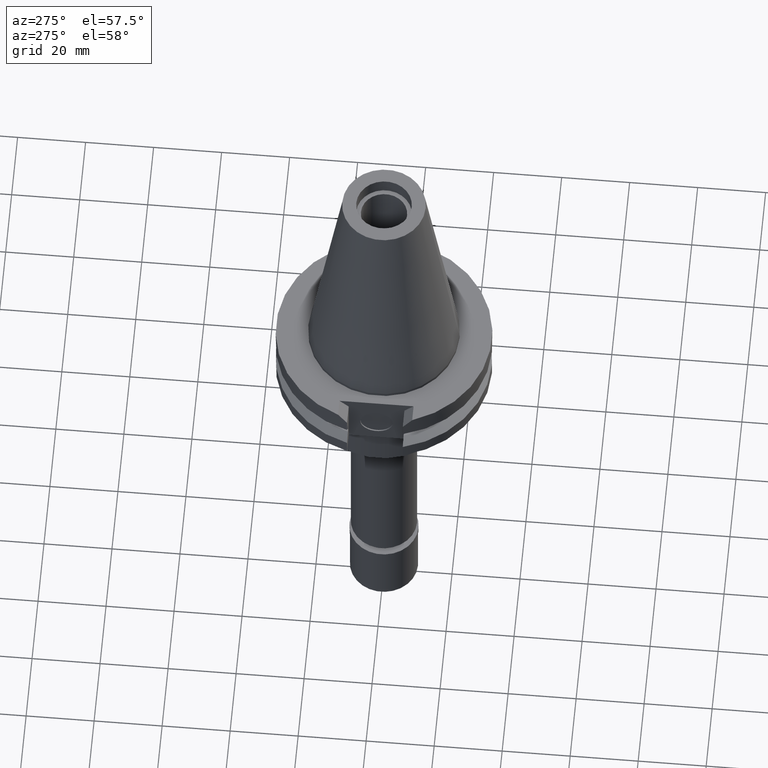
[diagram: clean part render]
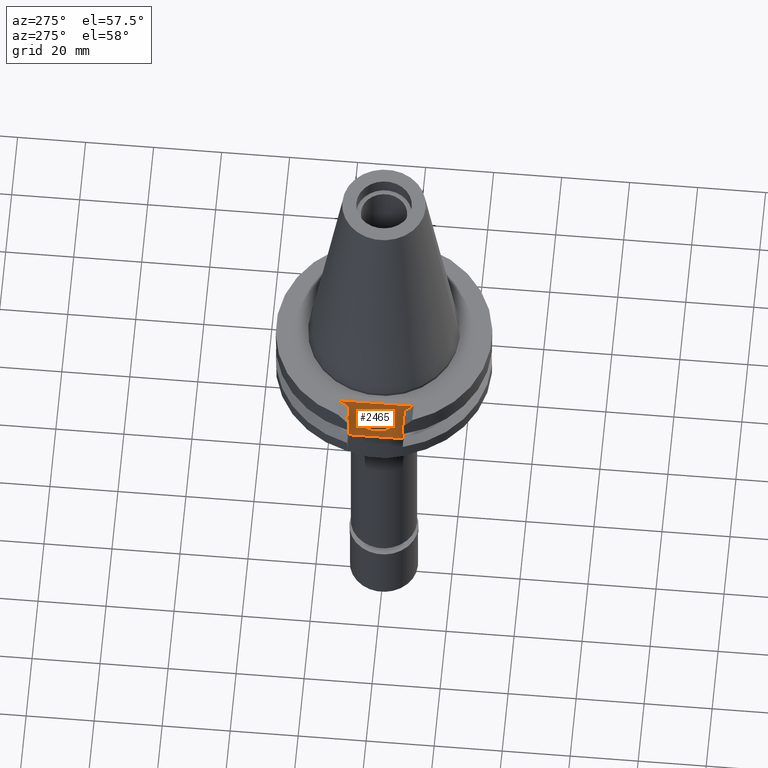
[diagram: same view with one face highlighted and labeled with its STEP entity id]
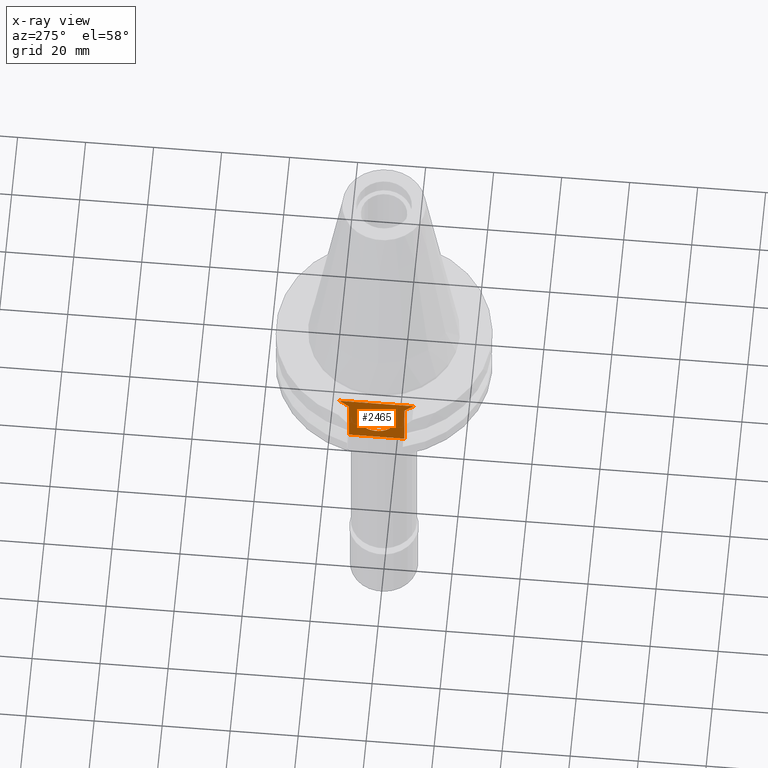
[diagram: x-ray of the same camera — body ghosted, the highlighted face saturated]
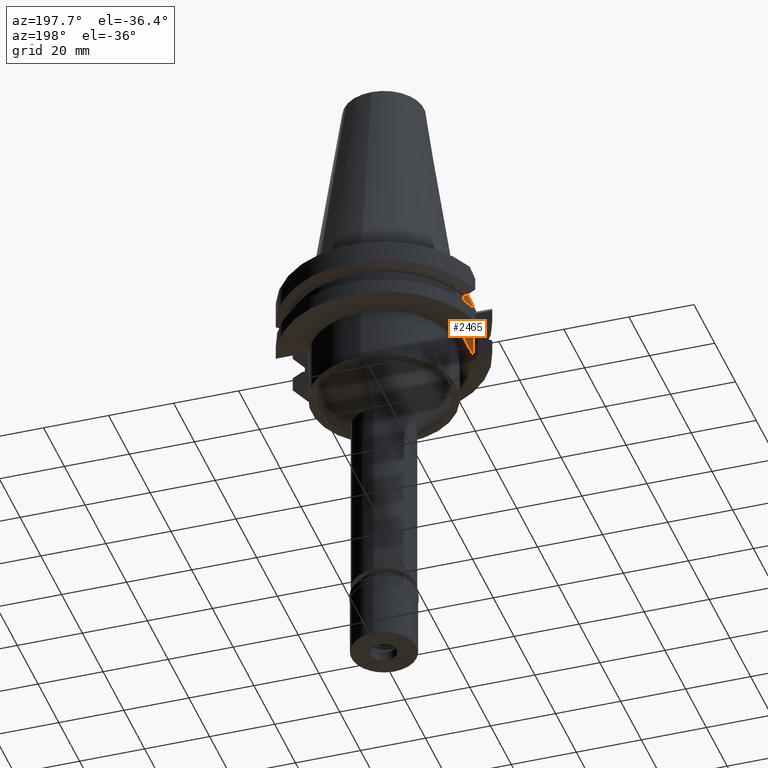
[diagram: same view with one face highlighted and labeled with its STEP entity id]
A machine part, auxiliary view. The second image highlights one B-rep face of the part: STEP entity #2465.
The next image is the same camera in x-ray: the body ghosted, the highlighted face saturated — about 0% of this face is hidden behind the body in this view.
A second angle (auxiliary view) of the same face is appended — the face is thin or edge-on in the first view.
In plain terms, the highlighted planar face has unit normal (1, 0, 0).
Its self-contained STEP definition (entity closure, byte-faithful):
#31 = LINE ( 'NONE', #1024, #2861 ) ;
#117 = CARTESIAN_POINT ( 'NONE',  ( -24.98000000000000043, -10.89000000000000057, -1.000000000000000000 ) ) ;
#150 = CARTESIAN_POINT ( 'NONE',  ( -24.98000000000000043, -4.762500000000000178, -11.18000000000000149 ) ) ;
#195 = EDGE_CURVE ( 'NONE', #2112, #290, #2826, .T. ) ;
#198 = ORIENTED_EDGE ( 'NONE', *, *, #195, .T. ) ;
#210 = VECTOR ( 'NONE', #1256, 1000.000000000000114 ) ;
#290 = VERTEX_POINT ( 'NONE', #796 ) ;
#298 = ORIENTED_EDGE ( 'NONE', *, *, #2775, .F. ) ;
#411 = EDGE_CURVE ( 'NONE', #2091, #2385, #2700, .T. ) ;
#503 = DIRECTION ( 'NONE',  ( 0.0000000000000000000, -1.000000000000000000, 0.0000000000000000000 ) ) ;
#540 = EDGE_CURVE ( 'NONE', #2629, #1250, #2806, .T. ) ;
#571 = ORIENTED_EDGE ( 'NONE', *, *, #411, .F. ) ;
#639 = CIRCLE ( 'NONE', #3177, 4.762500000000000178 ) ;
#650 = DIRECTION ( 'NONE',  ( 1.000000000000000000, 0.0000000000000000000, 0.0000000000000000000 ) ) ;
#721 = DIRECTION ( 'NONE',  ( 0.0000000000000000000, 0.0000000000000000000, 1.000000000000000000 ) ) ;
#796 = CARTESIAN_POINT ( 'NONE',  ( -24.98000000000000043, 8.189999999999999503, -19.05000000000000071 ) ) ;
#832 = DIRECTION ( 'NONE',  ( 0.0000000000000000000, -1.000000000000000000, 0.0000000000000000000 ) ) ;
#849 = AXIS2_PLACEMENT_3D ( 'NONE', #2973, #650, #1686 ) ;
#935 = CARTESIAN_POINT ( 'NONE',  ( -24.98000000000000043, 4.762500000000000178, -11.18000000000000149 ) ) ;
#945 = EDGE_LOOP ( 'NONE', ( #1572, #298, #2505, #1407, #198, #3172 ) ) ;
#995 = CARTESIAN_POINT ( 'NONE',  ( -24.98000000000000043, -10.89000000000000057, -1.000000000000000000 ) ) ;
#1024 = CARTESIAN_POINT ( 'NONE',  ( -24.98000000000000043, 10.89000000000000057, -1.000000000000000000 ) ) ;
#1124 = FACE_BOUND ( 'NONE', #1865, .T. ) ;
#1135 = VECTOR ( 'NONE', #1565, 1000.000000000000000 ) ;
#1229 = VECTOR ( 'NONE', #832, 1000.000000000000000 ) ;
#1241 = EDGE_CURVE ( 'NONE', #290, #2629, #2582, .T. ) ;
#1250 = VERTEX_POINT ( 'NONE', #1278 ) ;
#1256 = DIRECTION ( 'NONE',  ( 0.0000000000000000000, 0.7071067811865474617, 0.7071067811865474617 ) ) ;
#1278 = CARTESIAN_POINT ( 'NONE',  ( -24.98000000000000043, -8.189999999999999503, -3.700000000000000178 ) ) ;
#1320 = ORIENTED_EDGE ( 'NONE', *, *, #2190, .F. ) ;
#1407 = ORIENTED_EDGE ( 'NONE', *, *, #1616, .F. ) ;
#1519 = CARTESIAN_POINT ( 'NONE',  ( -24.98000000000000043, 8.189999999999999503, -3.700000000000000178 ) ) ;
#1565 = DIRECTION ( 'NONE',  ( 0.0000000000000000000, 0.0000000000000000000, -1.000000000000000000 ) ) ;
#1572 = ORIENTED_EDGE ( 'NONE', *, *, #540, .T. ) ;
#1573 = CARTESIAN_POINT ( 'NONE',  ( -24.98000000000000043, 0.0000000000000000000, -11.18000000000000149 ) ) ;
#1608 = CARTESIAN_POINT ( 'NONE',  ( -24.98000000000000043, 8.189999999999999503, -19.05000000000000071 ) ) ;
#1616 = EDGE_CURVE ( 'NONE', #2112, #2327, #2745, .T. ) ;
#1680 = CARTESIAN_POINT ( 'NONE',  ( -24.98000000000000043, 0.0000000000000000000, -11.18000000000000149 ) ) ;
#1686 = DIRECTION ( 'NONE',  ( 0.0000000000000000000, 1.000000000000000000, 0.0000000000000000000 ) ) ;
#1737 = VERTEX_POINT ( 'NONE', #995 ) ;
#1865 = EDGE_LOOP ( 'NONE', ( #1320, #571 ) ) ;
#1886 = CARTESIAN_POINT ( 'NONE',  ( -24.98000000000000043, 10.89000000000000057, -1.000000000000000000 ) ) ;
#1912 = DIRECTION ( 'NONE',  ( 0.0000000000000000000, 1.000000000000000000, 0.0000000000000000000 ) ) ;
#1936 = FACE_OUTER_BOUND ( 'NONE', #945, .T. ) ;
#2091 = VERTEX_POINT ( 'NONE', #935 ) ;
#2112 = VERTEX_POINT ( 'NONE', #3005 ) ;
#2165 = PLANE ( 'NONE',  #849 ) ;
#2176 = DIRECTION ( 'NONE',  ( 0.0000000000000000000, 0.7071067811865474617, -0.7071067811865474617 ) ) ;
#2190 = EDGE_CURVE ( 'NONE', #2385, #2091, #639, .T. ) ;
#2287 = VECTOR ( 'NONE', #721, 1000.000000000000000 ) ;
#2321 = DIRECTION ( 'NONE',  ( 0.0000000000000000000, -1.000000000000000000, 0.0000000000000000000 ) ) ;
#2327 = VERTEX_POINT ( 'NONE', #1886 ) ;
#2385 = VERTEX_POINT ( 'NONE', #150 ) ;
#2460 = VECTOR ( 'NONE', #2176, 1000.000000000000114 ) ;
#2465 = ADVANCED_FACE ( 'NONE', ( #1936, #1124 ), #2165, .F. ) ;
#2505 = ORIENTED_EDGE ( 'NONE', *, *, #2693, .F. ) ;
#2515 = CARTESIAN_POINT ( 'NONE',  ( -24.98000000000000043, 8.189999999999999503, -3.700000000000000178 ) ) ;
#2574 = CARTESIAN_POINT ( 'NONE',  ( -24.98000000000000043, -8.189999999999999503, -19.05000000000000071 ) ) ;
#2582 = LINE ( 'NONE', #1608, #1229 ) ;
#2612 = DIRECTION ( 'NONE',  ( -1.000000000000000000, 0.0000000000000000000, 0.0000000000000000000 ) ) ;
#2629 = VERTEX_POINT ( 'NONE', #2574 ) ;
#2693 = EDGE_CURVE ( 'NONE', #2327, #1737, #31, .T. ) ;
#2700 = CIRCLE ( 'NONE', #3241, 4.762500000000000178 ) ;
#2701 = LINE ( 'NONE', #117, #2460 ) ;
#2745 = LINE ( 'NONE', #2515, #210 ) ;
#2775 = EDGE_CURVE ( 'NONE', #1737, #1250, #2701, .T. ) ;
#2806 = LINE ( 'NONE', #3276, #2287 ) ;
#2826 = LINE ( 'NONE', #1519, #1135 ) ;
#2861 = VECTOR ( 'NONE', #503, 1000.000000000000000 ) ;
#2973 = CARTESIAN_POINT ( 'NONE',  ( -24.98000000000000043, 0.0000000000000000000, 0.0000000000000000000 ) ) ;
#2992 = DIRECTION ( 'NONE',  ( -1.000000000000000000, 0.0000000000000000000, 0.0000000000000000000 ) ) ;
#3005 = CARTESIAN_POINT ( 'NONE',  ( -24.98000000000000043, 8.189999999999999503, -3.700000000000000178 ) ) ;
#3172 = ORIENTED_EDGE ( 'NONE', *, *, #1241, .T. ) ;
#3177 = AXIS2_PLACEMENT_3D ( 'NONE', #1573, #2612, #2321 ) ;
#3241 = AXIS2_PLACEMENT_3D ( 'NONE', #1680, #2992, #1912 ) ;
#3276 = CARTESIAN_POINT ( 'NONE',  ( -24.98000000000000043, -8.189999999999999503, -19.05000000000000071 ) ) ;